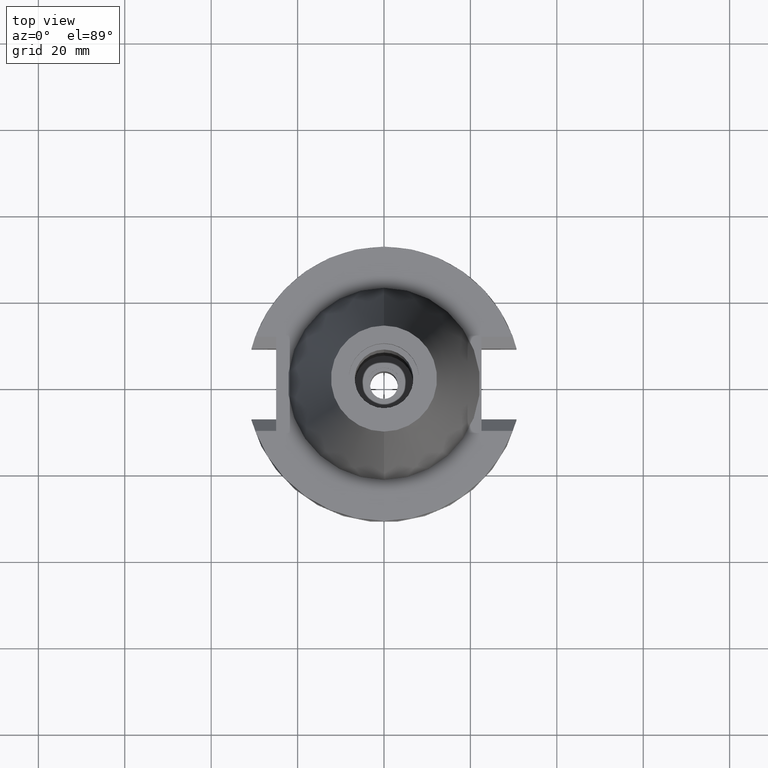
[diagram: clean part render]
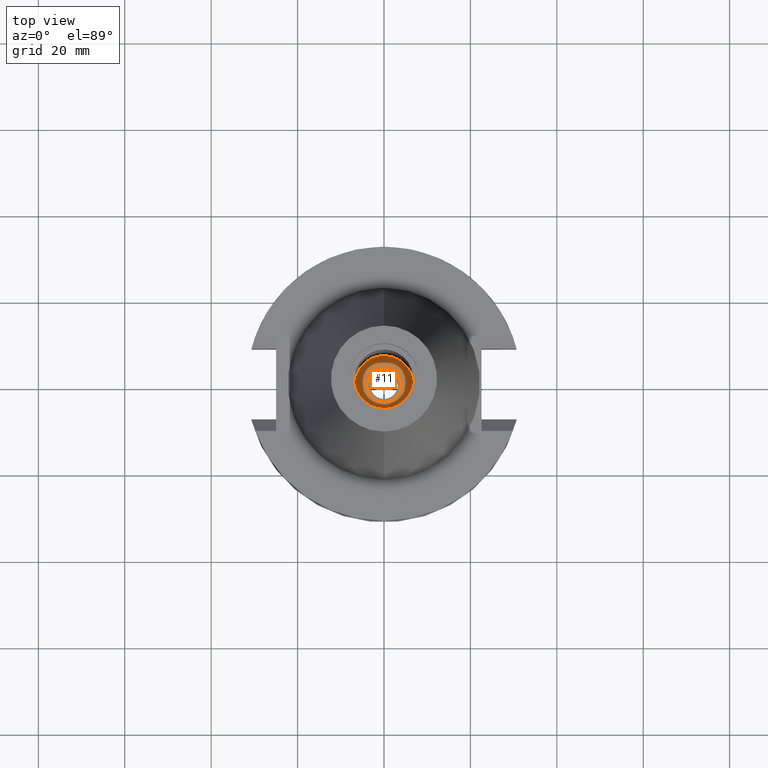
[diagram: same view with one face highlighted and labeled with its STEP entity id]
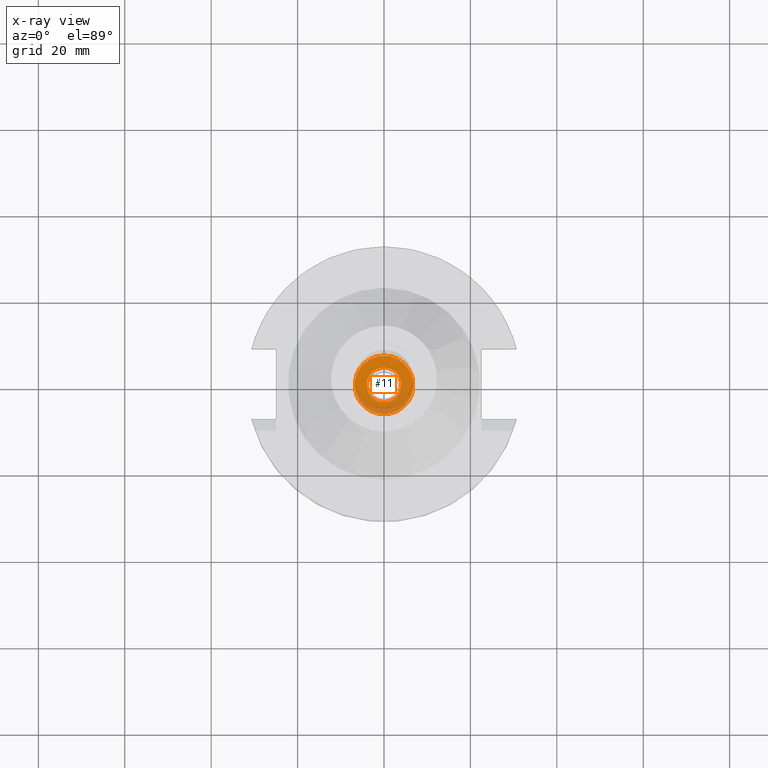
[diagram: x-ray of the same camera — body ghosted, the highlighted face saturated]
A machine part, top view. The second image highlights one B-rep face of the part: STEP entity #11.
The next image is the same camera in x-ray: the body ghosted, the highlighted face saturated — about 20% of this face is hidden behind the body in this view.
In plain terms, the highlighted planar face has unit normal (0, 0, -1).
Its self-contained STEP definition (entity closure, byte-faithful):
#11 = ADVANCED_FACE ( 'NONE', ( #2267, #2297 ), #987, .F. ) ;
#51 = ORIENTED_EDGE ( 'NONE', *, *, #3088, .F. ) ;
#52 = EDGE_CURVE ( 'NONE', #2253, #1737, #1719, .T. ) ;
#243 = DIRECTION ( 'NONE',  ( 0.0000000000000000000, 0.0000000000000000000, -1.000000000000000000 ) ) ;
#338 = VERTEX_POINT ( 'NONE', #1213 ) ;
#423 = AXIS2_PLACEMENT_3D ( 'NONE', #2678, #2151, #3116 ) ;
#452 = CARTESIAN_POINT ( 'NONE',  ( 0.0000000000000000000, 1.019518460290000030E-14, -16.75000000000000000 ) ) ;
#521 = CARTESIAN_POINT ( 'NONE',  ( 0.0000000000000000000, 6.799999999999999822, -16.75000000000000000 ) ) ;
#901 = CARTESIAN_POINT ( 'NONE',  ( 0.0000000000000000000, 2.145121949555999817E-14, -16.75000000000000000 ) ) ;
#987 = PLANE ( 'NONE',  #2816 ) ;
#1043 = CARTESIAN_POINT ( 'NONE',  ( 0.0000000000000000000, -6.799999999999999822, -16.75000000000000000 ) ) ;
#1213 = CARTESIAN_POINT ( 'NONE',  ( 0.0000000000000000000, 4.000000000000000000, -16.75000000000000000 ) ) ;
#1275 = AXIS2_PLACEMENT_3D ( 'NONE', #1973, #2781, #3005 ) ;
#1285 = ORIENTED_EDGE ( 'NONE', *, *, #2439, .F. ) ;
#1424 = DIRECTION ( 'NONE',  ( 0.0000000000000000000, 0.0000000000000000000, 1.000000000000000000 ) ) ;
#1600 = CIRCLE ( 'NONE', #1275, 4.000000000000000000 ) ;
#1646 = ORIENTED_EDGE ( 'NONE', *, *, #52, .F. ) ;
#1707 = EDGE_CURVE ( 'NONE', #1737, #2253, #2980, .T. ) ;
#1714 = DIRECTION ( 'NONE',  ( 0.0000000000000000000, 0.0000000000000000000, -1.000000000000000000 ) ) ;
#1719 = CIRCLE ( 'NONE', #2161, 6.799999999999999822 ) ;
#1737 = VERTEX_POINT ( 'NONE', #1043 ) ;
#1741 = ORIENTED_EDGE ( 'NONE', *, *, #1707, .F. ) ;
#1973 = CARTESIAN_POINT ( 'NONE',  ( 0.0000000000000000000, 2.145121949555999817E-14, -16.75000000000000000 ) ) ;
#2026 = DIRECTION ( 'NONE',  ( 0.0000000000000000000, -1.000000000000000000, 0.0000000000000000000 ) ) ;
#2060 = CARTESIAN_POINT ( 'NONE',  ( 0.0000000000000000000, 2.145121949555999817E-14, -16.75000000000000000 ) ) ;
#2075 = DIRECTION ( 'NONE',  ( 0.0000000000000000000, 1.000000000000000000, 0.0000000000000000000 ) ) ;
#2078 = EDGE_LOOP ( 'NONE', ( #1285, #51 ) ) ;
#2090 = AXIS2_PLACEMENT_3D ( 'NONE', #901, #1424, #2736 ) ;
#2101 = EDGE_LOOP ( 'NONE', ( #1646, #1741 ) ) ;
#2146 = CARTESIAN_POINT ( 'NONE',  ( 0.0000000000000000000, -4.000000000000000000, -16.75000000000000000 ) ) ;
#2151 = DIRECTION ( 'NONE',  ( 0.0000000000000000000, 0.0000000000000000000, -1.000000000000000000 ) ) ;
#2161 = AXIS2_PLACEMENT_3D ( 'NONE', #2060, #243, #2075 ) ;
#2253 = VERTEX_POINT ( 'NONE', #521 ) ;
#2267 = FACE_OUTER_BOUND ( 'NONE', #2101, .T. ) ;
#2273 = VERTEX_POINT ( 'NONE', #2146 ) ;
#2297 = FACE_BOUND ( 'NONE', #2078, .T. ) ;
#2439 = EDGE_CURVE ( 'NONE', #338, #2273, #3290, .T. ) ;
#2678 = CARTESIAN_POINT ( 'NONE',  ( 0.0000000000000000000, 2.145121949555999817E-14, -16.75000000000000000 ) ) ;
#2736 = DIRECTION ( 'NONE',  ( 0.0000000000000000000, 1.000000000000000000, 0.0000000000000000000 ) ) ;
#2781 = DIRECTION ( 'NONE',  ( 0.0000000000000000000, 0.0000000000000000000, 1.000000000000000000 ) ) ;
#2816 = AXIS2_PLACEMENT_3D ( 'NONE', #452, #1714, #2026 ) ;
#2980 = CIRCLE ( 'NONE', #423, 6.799999999999999822 ) ;
#3005 = DIRECTION ( 'NONE',  ( 0.0000000000000000000, -1.000000000000000000, 0.0000000000000000000 ) ) ;
#3088 = EDGE_CURVE ( 'NONE', #2273, #338, #1600, .T. ) ;
#3116 = DIRECTION ( 'NONE',  ( 0.0000000000000000000, -1.000000000000000000, 0.0000000000000000000 ) ) ;
#3290 = CIRCLE ( 'NONE', #2090, 4.000000000000000000 ) ;